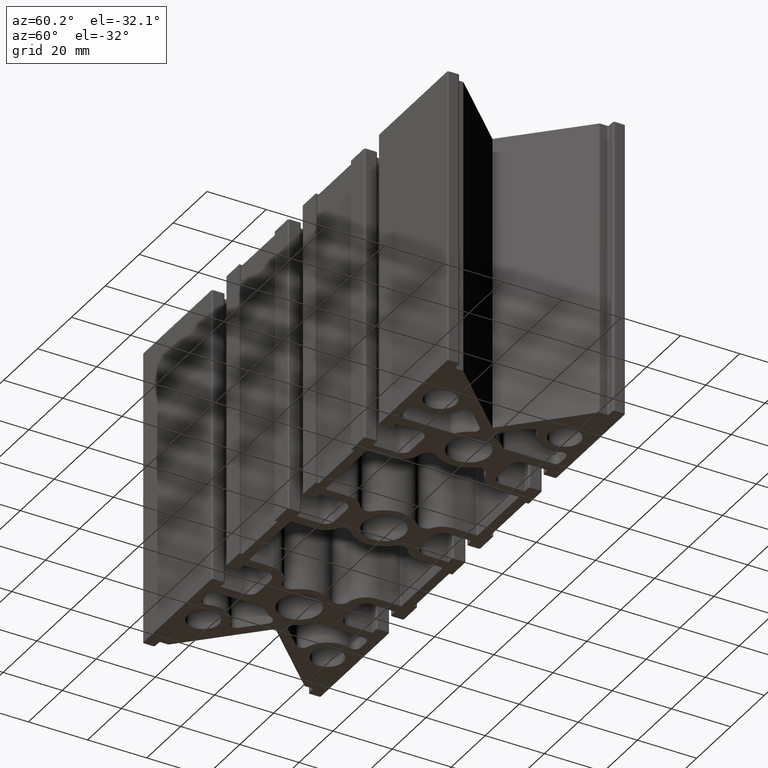
[diagram: clean part render]
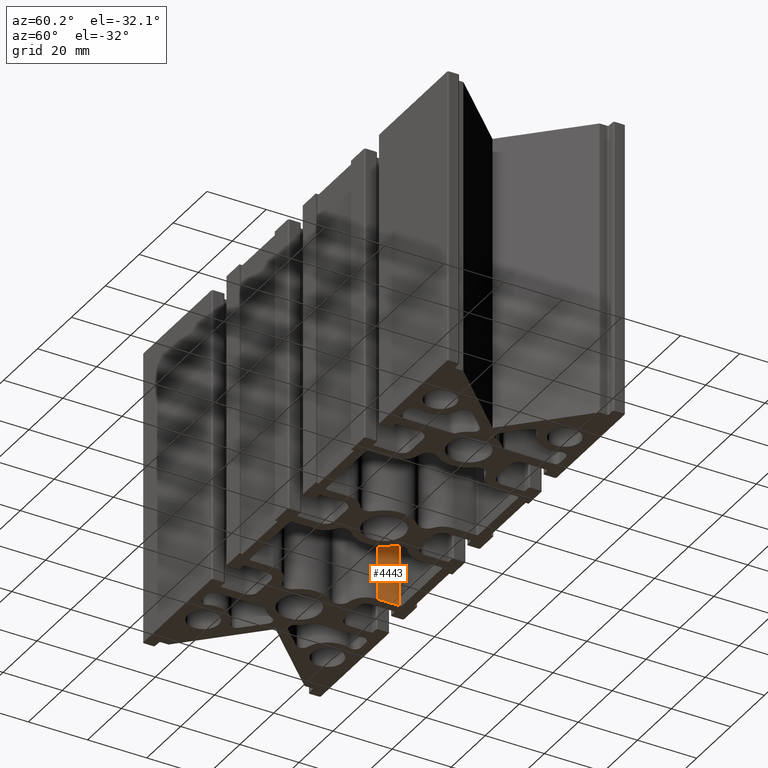
[diagram: same view with one face highlighted and labeled with its STEP entity id]
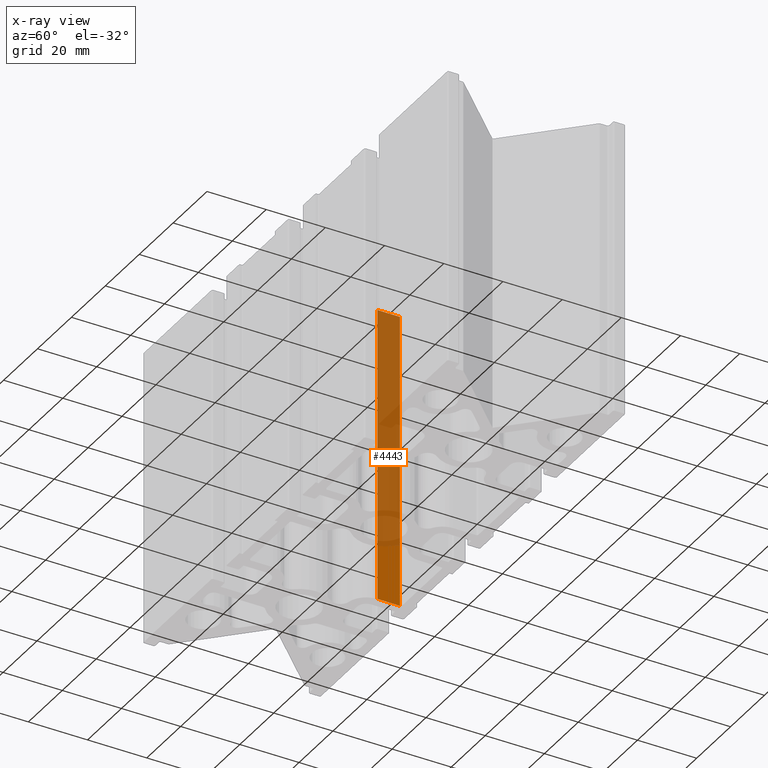
[diagram: x-ray of the same camera — body ghosted, the highlighted face saturated]
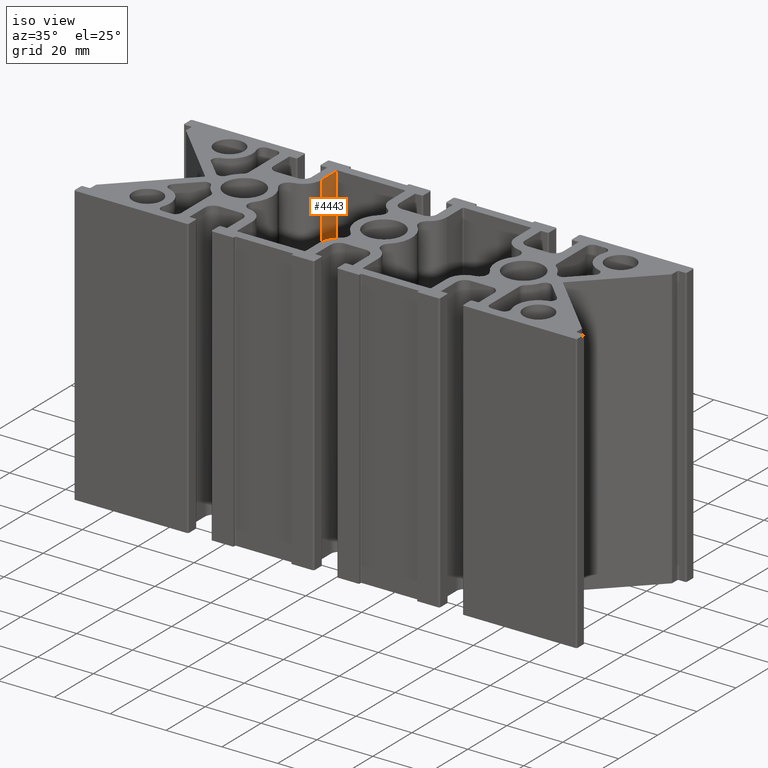
[diagram: same view with one face highlighted and labeled with its STEP entity id]
A machine part, auxiliary view. The second image highlights one B-rep face of the part: STEP entity #4443.
The next image is the same camera in x-ray: the body ghosted, the highlighted face saturated — about 80% of this face is hidden behind the body in this view.
A second angle (iso view) of the same face is appended — the face is thin or edge-on in the first view.
In plain terms, the highlighted planar face has unit normal (1, 0, 0).
Its self-contained STEP definition (entity closure, byte-faithful):
#66=PLANE('',#4838);
#213=FACE_OUTER_BOUND('',#457,.T.);
#457=EDGE_LOOP('',(#3356,#3357,#3358,#3359));
#771=LINE('',#6937,#1205);
#830=LINE('',#7171,#1264);
#831=LINE('',#7174,#1265);
#832=LINE('',#7175,#1266);
#1205=VECTOR('',#5464,7.65000000005238);
#1264=VECTOR('',#5715,100.);
#1265=VECTOR('',#5718,7.65000000005238);
#1266=VECTOR('',#5719,100.);
#1970=VERTEX_POINT('',#6934);
#1971=VERTEX_POINT('',#6936);
#2050=VERTEX_POINT('',#7169);
#2051=VERTEX_POINT('',#7173);
#2446=EDGE_CURVE('',#1970,#1971,#771,.T.);
#2564=EDGE_CURVE('',#1971,#2050,#830,.T.);
#2565=EDGE_CURVE('',#2050,#2051,#831,.T.);
#2566=EDGE_CURVE('',#1970,#2051,#832,.T.);
#3356=ORIENTED_EDGE('',*,*,#2565,.F.);
#3357=ORIENTED_EDGE('',*,*,#2564,.F.);
#3358=ORIENTED_EDGE('',*,*,#2446,.F.);
#3359=ORIENTED_EDGE('',*,*,#2566,.T.);
#4443=ADVANCED_FACE('',(#213),#66,.T.);
#4838=AXIS2_PLACEMENT_3D('',#7172,#5716,#5717);
#5464=DIRECTION('',(-1.16101754208372E-15,1.,0.));
#5715=DIRECTION('',(0.,0.,-1.));
#5716=DIRECTION('center_axis',(1.,1.16101754208372E-15,0.));
#5717=DIRECTION('ref_axis',(1.4210854715202E-15,-1.,0.));
#5718=DIRECTION('',(1.16101754208372E-15,-1.,0.));
#5719=DIRECTION('',(0.,0.,-1.));
#6934=CARTESIAN_POINT('',(-34.75,17.5999999999455,100.));
#6936=CARTESIAN_POINT('',(-34.75,25.2499999999979,100.));
#6937=CARTESIAN_POINT('',(-34.75,21.059439522307,100.));
#7169=CARTESIAN_POINT('',(-34.75,25.2499999999979,0.));
#7171=CARTESIAN_POINT('',(-34.75,25.2499999999979,100.));
#7172=CARTESIAN_POINT('Origin',(-34.75,25.2499999999979,100.));
#7173=CARTESIAN_POINT('',(-34.75,17.5999999999455,0.));
#7174=CARTESIAN_POINT('',(-34.75,21.059439522307,0.));
#7175=CARTESIAN_POINT('',(-34.75,17.5999999999455,100.));